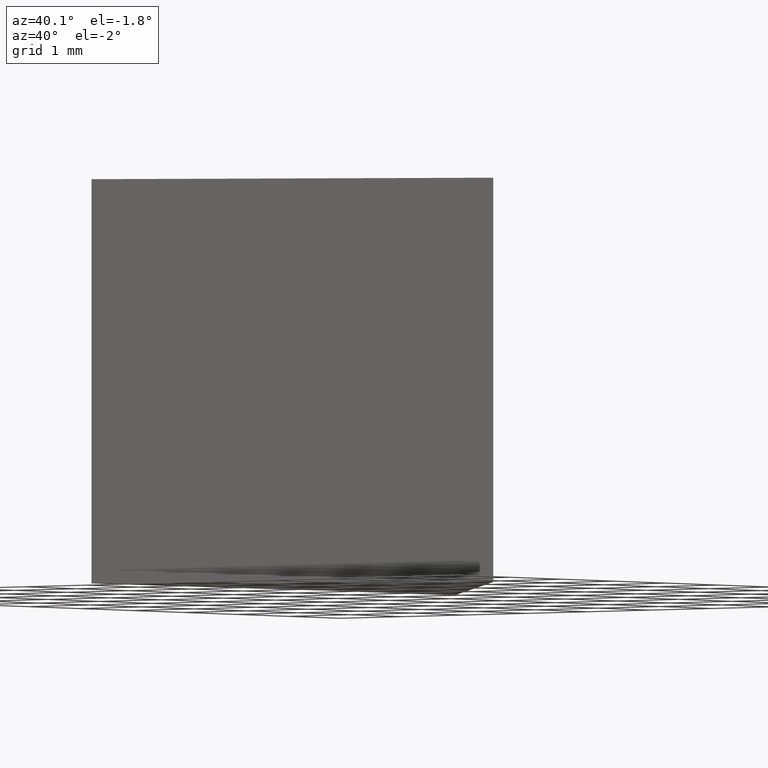
[diagram: clean part render]
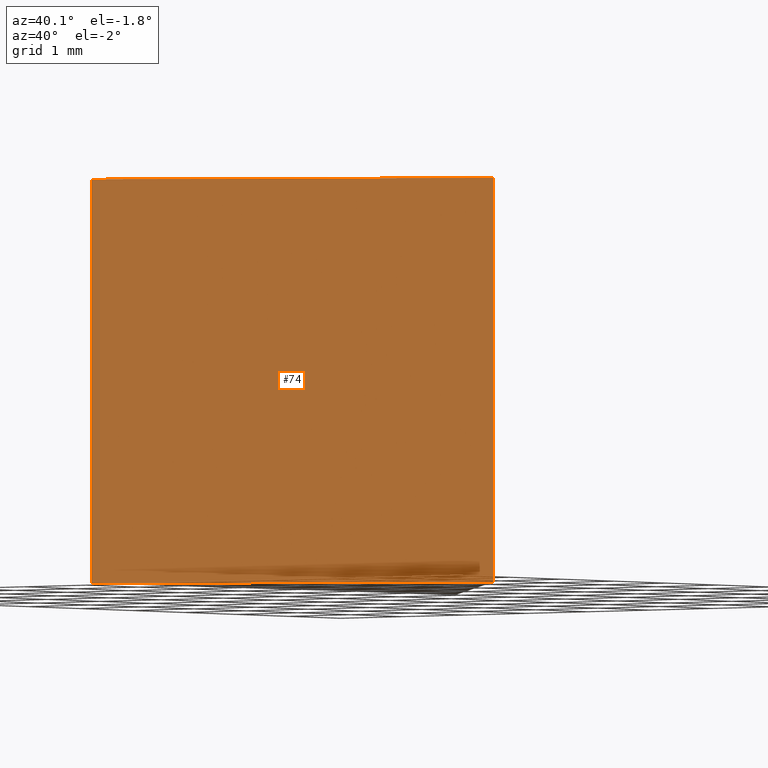
[diagram: same view with one face highlighted and labeled with its STEP entity id]
A machine part, auxiliary view. The second image highlights one B-rep face of the part: STEP entity #74.
In plain terms, the highlighted planar face has unit normal (-0.5514, 0.8342, 0).
Its self-contained STEP definition (entity closure, byte-faithful):
#2 = VECTOR ( 'NONE', #42, 1000.000000000000000 ) ;
#18 = VECTOR ( 'NONE', #82, 1000.000000000000000 ) ;
#26 = CARTESIAN_POINT ( 'NONE',  ( 0.6861709744360347000, 0.8474711050240408800, 5.000000000000000000 ) ) ;
#28 = VECTOR ( 'NONE', #61, 1000.000000000000000 ) ;
#34 = LINE ( 'NONE', #134, #72 ) ;
#35 = CARTESIAN_POINT ( 'NONE',  ( 4.857370913066168000, 3.604478735041047000, 0.0000000000000000000 ) ) ;
#37 = DIRECTION ( 'NONE',  ( -0.5514015260034012000, 0.8342399877260262600, 0.0000000000000000000 ) ) ;
#40 = ORIENTED_EDGE ( 'NONE', *, *, #52, .T. ) ;
#42 = DIRECTION ( 'NONE',  ( -0.0000000000000000000, -0.0000000000000000000, -1.000000000000000000 ) ) ;
#52 = EDGE_CURVE ( 'NONE', #80, #164, #34, .T. ) ;
#58 = DIRECTION ( 'NONE',  ( -0.0000000000000000000, -0.0000000000000000000, -1.000000000000000000 ) ) ;
#61 = DIRECTION ( 'NONE',  ( 0.8342399877260263700, 0.5514015260034012000, -0.0000000000000000000 ) ) ;
#64 = CARTESIAN_POINT ( 'NONE',  ( 4.857370913066168000, 3.604478735041047000, 5.000000000000000000 ) ) ;
#66 = FACE_OUTER_BOUND ( 'NONE', #90, .T. ) ;
#68 = CARTESIAN_POINT ( 'NONE',  ( 4.857370913066168000, 3.604478735041047000, 5.000000000000000000 ) ) ;
#72 = VECTOR ( 'NONE', #58, 1000.000000000000000 ) ;
#73 = CARTESIAN_POINT ( 'NONE',  ( 4.857370913066168000, 3.604478735041047000, 5.000000000000000000 ) ) ;
#74 = ADVANCED_FACE ( 'NONE', ( #66 ), #142, .F. ) ;
#77 = ORIENTED_EDGE ( 'NONE', *, *, #95, .F. ) ;
#80 = VERTEX_POINT ( 'NONE', #26 ) ;
#82 = DIRECTION ( 'NONE',  ( 0.8342399877260263700, 0.5514015260034012000, -0.0000000000000000000 ) ) ;
#84 = LINE ( 'NONE', #64, #18 ) ;
#90 = EDGE_LOOP ( 'NONE', ( #116, #77, #154, #40 ) ) ;
#93 = DIRECTION ( 'NONE',  ( -0.8342399877260262600, -0.5514015260034012000, 0.0000000000000000000 ) ) ;
#95 = EDGE_CURVE ( 'NONE', #156, #149, #145, .T. ) ;
#104 = AXIS2_PLACEMENT_3D ( 'NONE', #68, #37, #93 ) ;
#105 = CARTESIAN_POINT ( 'NONE',  ( 0.6861709744360347000, 0.8474711050240408800, 0.0000000000000000000 ) ) ;
#109 = LINE ( 'NONE', #112, #28 ) ;
#112 = CARTESIAN_POINT ( 'NONE',  ( 4.857370913066168000, 3.604478735041047000, 0.0000000000000000000 ) ) ;
#116 = ORIENTED_EDGE ( 'NONE', *, *, #140, .T. ) ;
#132 = CARTESIAN_POINT ( 'NONE',  ( 4.857370913066168000, 3.604478735041047000, 5.000000000000000000 ) ) ;
#134 = CARTESIAN_POINT ( 'NONE',  ( 0.6861709744360347000, 0.8474711050240408800, 5.000000000000000000 ) ) ;
#140 = EDGE_CURVE ( 'NONE', #164, #149, #109, .T. ) ;
#142 = PLANE ( 'NONE',  #104 ) ;
#145 = LINE ( 'NONE', #73, #2 ) ;
#149 = VERTEX_POINT ( 'NONE', #35 ) ;
#154 = ORIENTED_EDGE ( 'NONE', *, *, #162, .F. ) ;
#156 = VERTEX_POINT ( 'NONE', #132 ) ;
#162 = EDGE_CURVE ( 'NONE', #80, #156, #84, .T. ) ;
#164 = VERTEX_POINT ( 'NONE', #105 ) ;